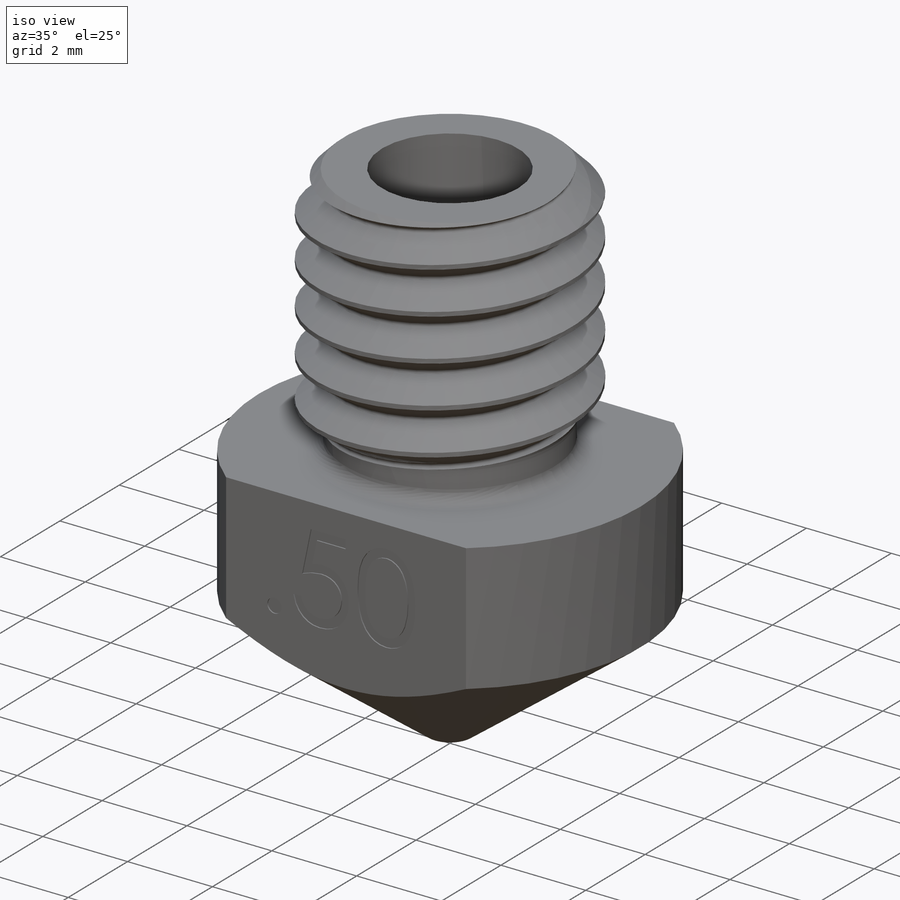
[diagram: iso view]
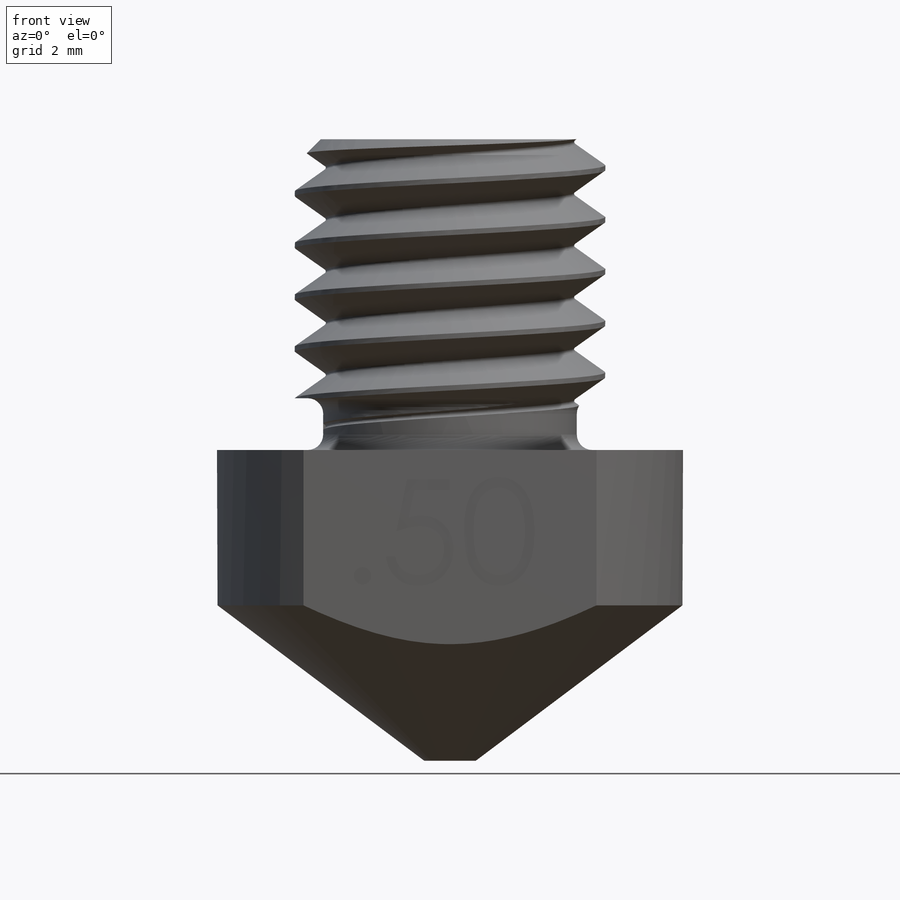
[diagram: front view]
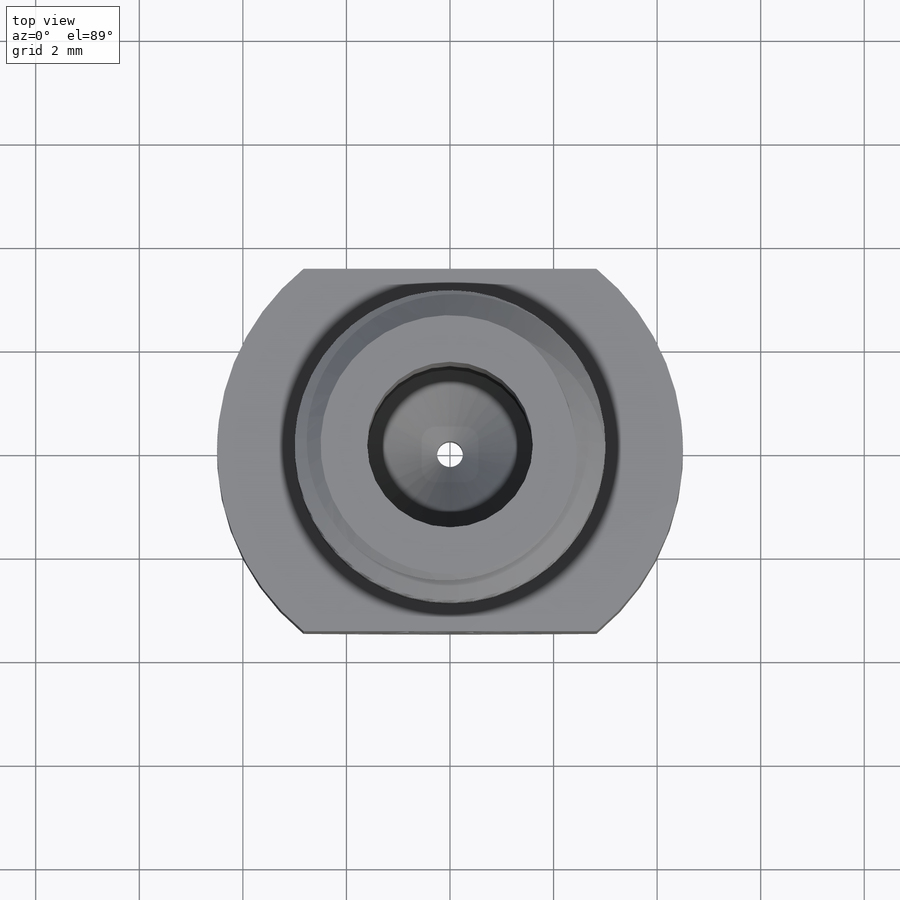
[diagram: top view]
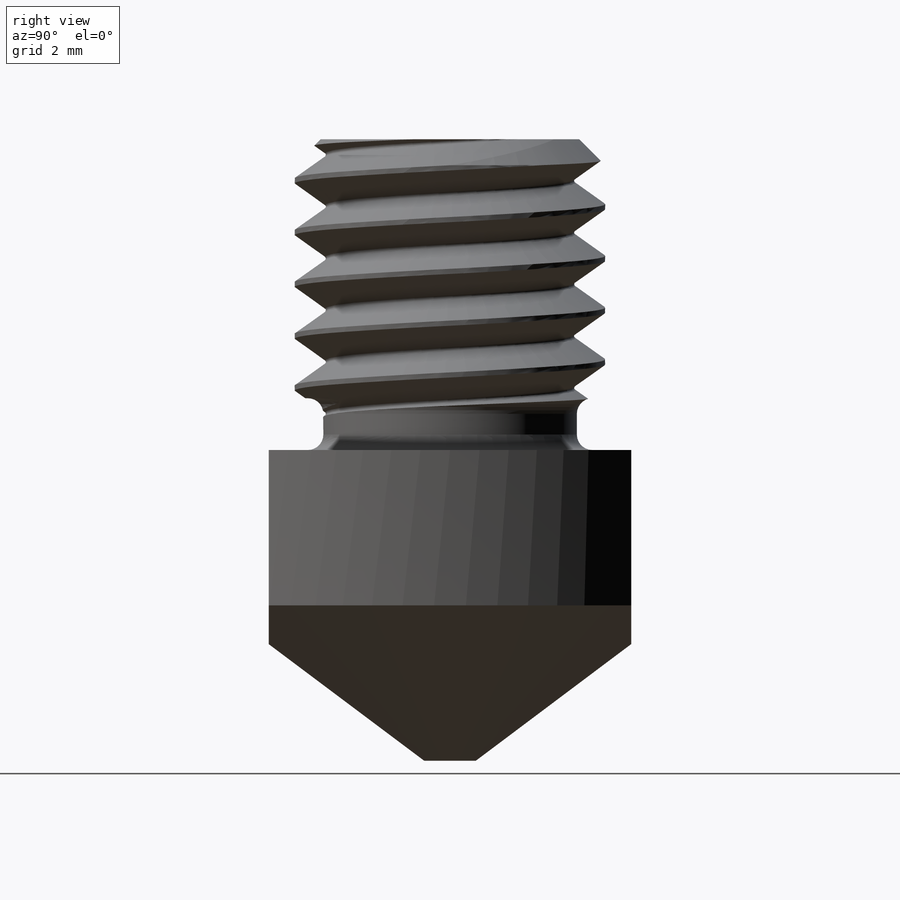
[diagram: right view]
SOLIDWORKS PART (.sldprt)
format: sldprt  version: not decoded by parser v0  size: 533,504 bytes
history: native  units: mm
features: sketch x5, cut_extrude x2, plane x2, material x1, revolve x1, helix x1, sweep x1 (+11 scaffold rows collapsed)
feature tree (24):
  scaffold x11  (default folders/planes/origin — collapsed)
  material  "Brass"
  sketch  "Sketch1"  dims[c1.D13=0.3mm c1.D1=0.5mm c1.D2=1.0mm c1.D3=1.5mm c1.D4=3.0mm c1.D5=3.0mm c1.D6=6.0mm c1.D7=1.0mm c1.D8=~5.579859mm c2.D8=50.0deg c2.D9=9.0mm c2.D10=3.2mm c2.D11=6.0mm c2.D12=4.9mm]
  revolve  "Revolve1"  Angle=360deg
  sketch  "Sketch2"  dims[D1=7.0mm]
  cut_extrude  "Cut-Extrude1"  [1 undecoded]
  plane  "Plane1"  Offset=0.9mm
  sketch  "Sketch4"
  helix  "Helix/Spiral1"  Pitch=7mm
  plane  "Plane2"
  sketch  "Sketch5"  dims[c1.D1=0.05mm c1.D3=0.05mm c1.D2=0.9mm c2.D3=0.6mm]
  sweep  "Cut-Sweep1"
  sketch  "Sketch6"
  cut_extrude  "Cut-Extrude2"  Depth=0.03mm
decode coverage: 6 of 10 modeling features carry decoded parameters
note: ~ marks probable driven/reference dimensions
note: 1 parameter value undecoded
note: suppression state not decoded; provenance and decode notes live in map.json
